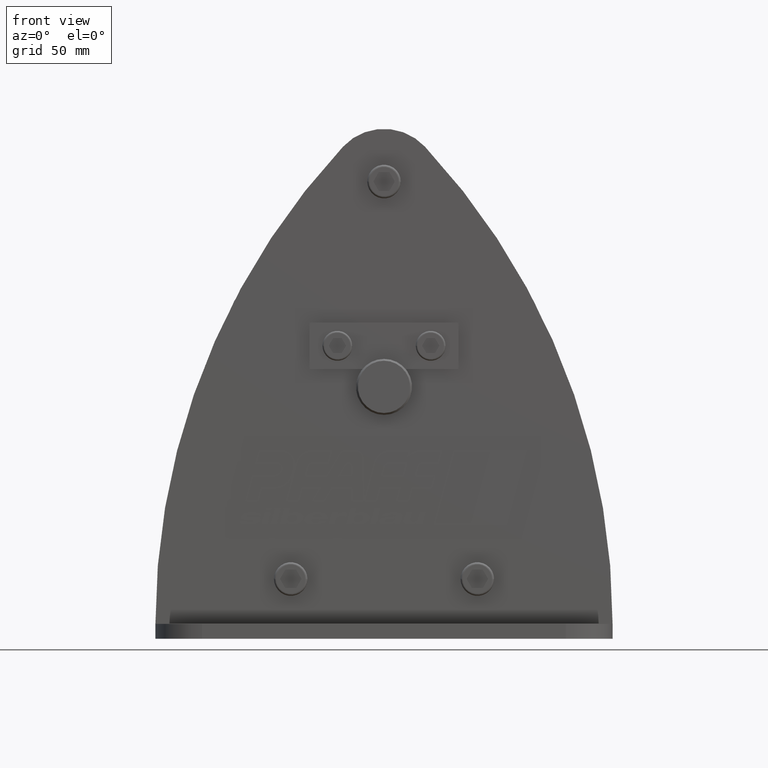
[diagram: clean part render]
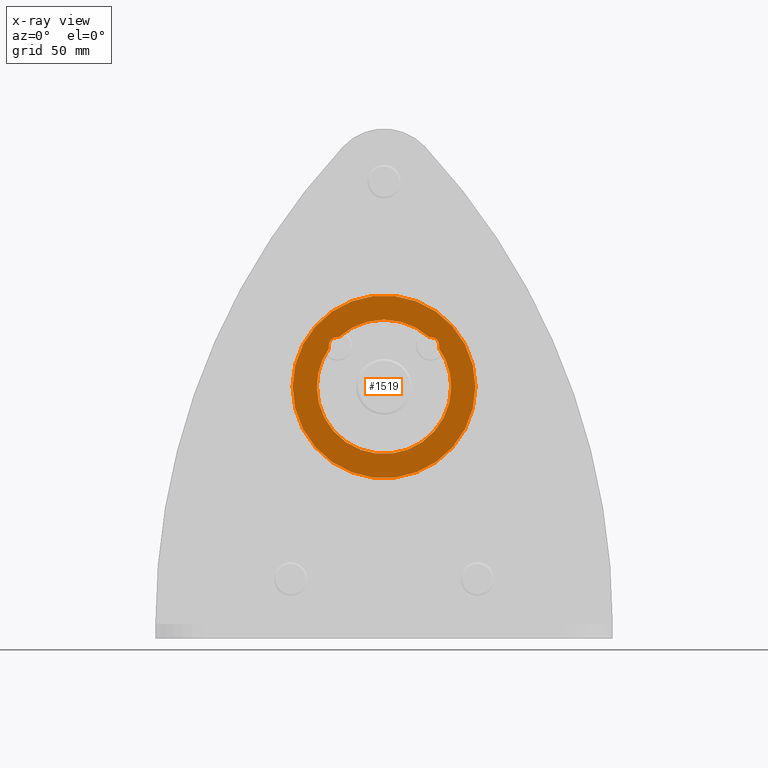
[diagram: x-ray — body ghosted, one internal face saturated and labeled with its STEP entity id]
A machine part, front view, then the same camera in x-ray: the body is ghosted and one INTERNAL B-rep face — a face not visible from any outside direction — is saturated and labeled: STEP entity #1519.
In plain terms, the highlighted planar face has unit normal (0, -1, 0).
Its self-contained STEP definition (entity closure, byte-faithful):
#1519=ADVANCED_FACE('',(#3309,#3310),#3311,.T.);
#3309=FACE_BOUND('',#5395,.T.);
#3310=FACE_OUTER_BOUND('',#5396,.T.);
#3311=PLANE('',#5397);
#5395=EDGE_LOOP('',(#10173,#10174,#10175,#10176,#10177,#10178,#10179,#10180));
#5396=EDGE_LOOP('',(#10181,#10182));
#5397=AXIS2_PLACEMENT_3D('',#10183,#10184,#10185);
#10173=ORIENTED_EDGE('',*,*,#12871,.T.);
#10174=ORIENTED_EDGE('',*,*,#14015,.T.);
#10175=ORIENTED_EDGE('',*,*,#14105,.T.);
#10176=ORIENTED_EDGE('',*,*,#14070,.T.);
#10177=ORIENTED_EDGE('',*,*,#12822,.T.);
#10178=ORIENTED_EDGE('',*,*,#12834,.T.);
#10179=ORIENTED_EDGE('',*,*,#14064,.T.);
#10180=ORIENTED_EDGE('',*,*,#12831,.T.);
#10181=ORIENTED_EDGE('',*,*,#12745,.T.);
#10182=ORIENTED_EDGE('',*,*,#14106,.T.);
#10183=CARTESIAN_POINT('',(24.5,-20.0,0.0));
#10184=DIRECTION('',(0.0,-1.0,0.0));
#10185=DIRECTION('',(1.0,0.0,0.0));
#12745=EDGE_CURVE('',#15445,#15447,#15449,.T.);
#12822=EDGE_CURVE('',#15559,#15573,#15575,.T.);
#12831=EDGE_CURVE('',#15584,#15588,#15590,.T.);
#12834=EDGE_CURVE('',#15573,#15592,#15595,.T.);
#12871=EDGE_CURVE('',#15588,#15652,#15654,.T.);
#14015=EDGE_CURVE('',#15652,#17357,#17359,.T.);
#14064=EDGE_CURVE('',#15592,#15584,#17424,.T.);
#14070=EDGE_CURVE('',#17430,#15559,#17431,.T.);
#14105=EDGE_CURVE('',#17357,#17430,#17479,.T.);
#14106=EDGE_CURVE('',#15447,#15445,#17480,.T.);
#15445=VERTEX_POINT('',#21839);
#15447=VERTEX_POINT('',#21842);
#15449=CIRCLE('',#21845,49.0);
#15559=VERTEX_POINT('',#21977);
#15573=VERTEX_POINT('',#22027);
#15575=CIRCLE('',#22034,4.57985);
#15584=VERTEX_POINT('',#22045);
#15588=VERTEX_POINT('',#22050);
#15590=CIRCLE('',#22057,36.0);
#15592=VERTEX_POINT('',#22059);
#15595=CIRCLE('',#22063,36.0);
#15652=VERTEX_POINT('',#22234);
#15654=CIRCLE('',#22237,4.57985);
#17357=VERTEX_POINT('',#24555);
#17359=CIRCLE('',#24562,4.57985);
#17424=CIRCLE('',#24697,36.0);
#17430=VERTEX_POINT('',#24703);
#17431=CIRCLE('',#24704,4.57985);
#17479=CIRCLE('',#24775,36.0);
#17480=CIRCLE('',#24776,49.0);
#21839=CARTESIAN_POINT('',(49.0,-20.0,0.0));
#21842=CARTESIAN_POINT('',(-49.0,-20.0,6.00076931582203E-015));
#21845=AXIS2_PLACEMENT_3D('',#27409,#27410,#27411);
#21977=CARTESIAN_POINT('',(29.57985,-20.0,22.0));
#22027=CARTESIAN_POINT('',(29.4094938149555,-20.0,20.7625064370392));
#22034=AXIS2_PLACEMENT_3D('',#27535,#27536,#27537);
#22045=CARTESIAN_POINT('',(-36.0,-20.0,4.40872847693047E-015));
#22050=CARTESIAN_POINT('',(-29.4094938149555,-20.0,20.7625064370392));
#22057=AXIS2_PLACEMENT_3D('',#27547,#27548,#27549);
#22059=CARTESIAN_POINT('',(36.0,-20.0,-4.40872847693047E-015));
#22063=AXIS2_PLACEMENT_3D('',#27551,#27552,#27553);
#22234=CARTESIAN_POINT('',(-29.57985,-20.0,22.0));
#22237=AXIS2_PLACEMENT_3D('',#27610,#27611,#27612);
#24555=CARTESIAN_POINT('',(-24.3331791782253,-20.0,26.5310457969599));
#24562=AXIS2_PLACEMENT_3D('',#28906,#28907,#28908);
#24697=AXIS2_PLACEMENT_3D('',#28960,#28961,#28962);
#24703=CARTESIAN_POINT('',(24.3331791782253,-20.0,26.5310457969599));
#24704=AXIS2_PLACEMENT_3D('',#28969,#28970,#28971);
#24775=AXIS2_PLACEMENT_3D('',#29002,#29003,#29004);
#24776=AXIS2_PLACEMENT_3D('',#29005,#29006,#29007);
#27409=CARTESIAN_POINT('',(0.0,-20.0,0.0));
#27410=DIRECTION('',(0.0,-1.0,0.0));
#27411=DIRECTION('',(1.0,0.0,0.0));
#27535=CARTESIAN_POINT('',(25.0,-20.0,22.0));
#27536=DIRECTION('',(-0.0,1.0,0.0));
#27537=DIRECTION('',(1.0,0.0,0.0));
#27547=CARTESIAN_POINT('',(0.0,-20.0,0.0));
#27548=DIRECTION('',(-0.0,1.0,0.0));
#27549=DIRECTION('',(1.0,0.0,0.0));
#27551=CARTESIAN_POINT('',(0.0,-20.0,0.0));
#27552=DIRECTION('',(-0.0,1.0,0.0));
#27553=DIRECTION('',(1.0,0.0,0.0));
#27610=CARTESIAN_POINT('',(-25.0,-20.0,22.0));
#27611=DIRECTION('',(-0.0,1.0,0.0));
#27612=DIRECTION('',(1.0,0.0,0.0));
#28906=CARTESIAN_POINT('',(-25.0,-20.0,22.0));
#28907=DIRECTION('',(-0.0,1.0,0.0));
#28908=DIRECTION('',(1.0,0.0,0.0));
#28960=CARTESIAN_POINT('',(0.0,-20.0,0.0));
#28961=DIRECTION('',(-0.0,1.0,0.0));
#28962=DIRECTION('',(1.0,0.0,0.0));
#28969=CARTESIAN_POINT('',(25.0,-20.0,22.0));
#28970=DIRECTION('',(-0.0,1.0,0.0));
#28971=DIRECTION('',(1.0,0.0,0.0));
#29002=CARTESIAN_POINT('',(0.0,-20.0,0.0));
#29003=DIRECTION('',(-0.0,1.0,0.0));
#29004=DIRECTION('',(1.0,0.0,0.0));
#29005=CARTESIAN_POINT('',(0.0,-20.0,0.0));
#29006=DIRECTION('',(0.0,-1.0,0.0));
#29007=DIRECTION('',(1.0,0.0,0.0));